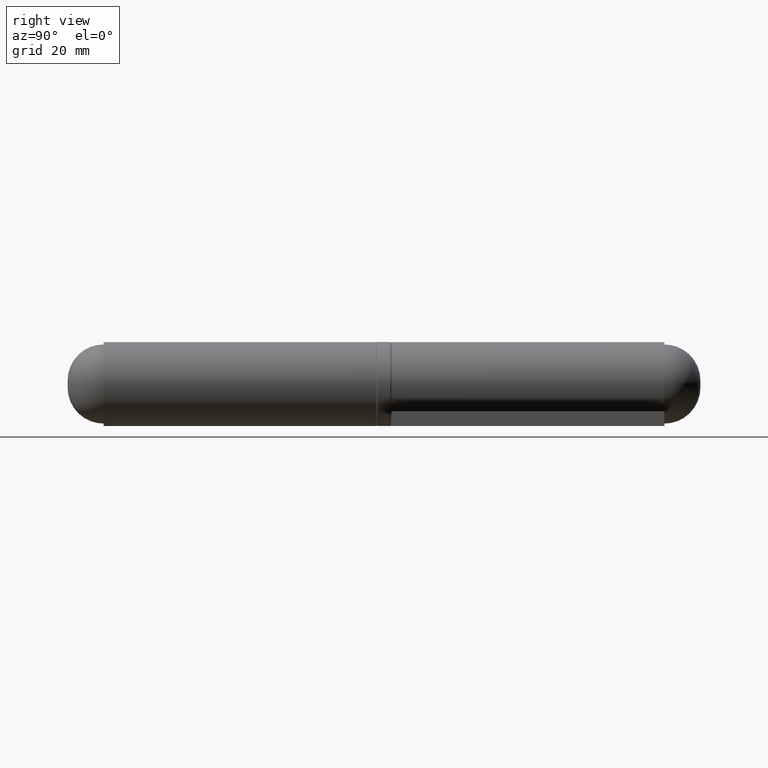
[diagram: clean part render]
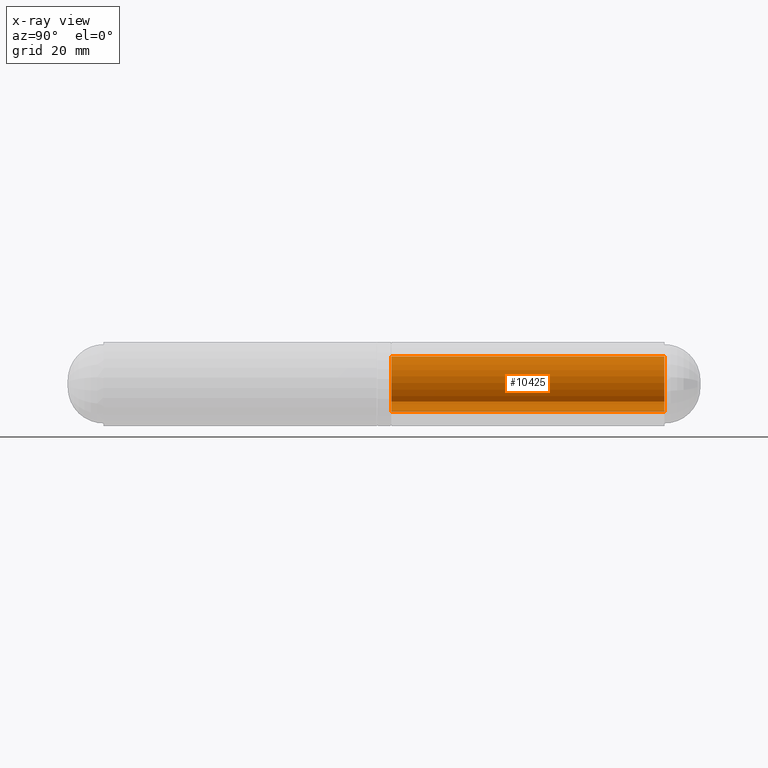
[diagram: x-ray — body ghosted, one internal face saturated and labeled with its STEP entity id]
A machine part, right view, then the same camera in x-ray: the body is ghosted and one INTERNAL B-rep face — a face not visible from any outside direction — is saturated and labeled: STEP entity #10425.
In plain terms, the highlighted cylindrical surface (edge-blend (fillet) strip) has radius 5.75 mm, axis along (-0, -1, -0).
Its self-contained STEP definition (entity closure, byte-faithful):
#364 = ORIENTED_EDGE ( 'NONE', *, *, #9784, .F. ) ;
#377 = CARTESIAN_POINT ( 'NONE',  ( 0.000000000000000000, 28.50000000000000000, -5.750000000000000888 ) ) ;
#409 = DIRECTION ( 'NONE',  ( 0.000000000000000000, 1.000000000000000000, -0.000000000000000000 ) ) ;
#480 = EDGE_CURVE ( 'NONE', #3544, #9344, #11389, .T. ) ;
#508 = VERTEX_POINT ( 'NONE', #377 ) ;
#744 = DIRECTION ( 'NONE',  ( 0.000000000000000000, 0.000000000000000000, 1.000000000000000000 ) ) ;
#945 = AXIS2_PLACEMENT_3D ( 'NONE', #2882, #2926, #3822 ) ;
#1348 = EDGE_CURVE ( 'NONE', #508, #11129, #1392, .T. ) ;
#1392 = CIRCLE ( 'NONE', #5823, 5.750000000000000888 ) ;
#1993 = CARTESIAN_POINT ( 'NONE',  ( 4.390579897545960897, -28.50000000000000000, -3.712857142857143522 ) ) ;
#2882 = CARTESIAN_POINT ( 'NONE',  ( 0.000000000000000000, 28.50000000000000000, 0.000000000000000000 ) ) ;
#2919 = LINE ( 'NONE', #6779, #9682 ) ;
#2926 = DIRECTION ( 'NONE',  ( -0.000000000000000000, -1.000000000000000000, -0.000000000000000000 ) ) ;
#3470 = CARTESIAN_POINT ( 'NONE',  ( 0.000000000000000000, 28.50000000000000000, 0.000000000000000000 ) ) ;
#3544 = VERTEX_POINT ( 'NONE', #9602 ) ;
#3553 = EDGE_LOOP ( 'NONE', ( #3590, #364, #11710, #11655 ) ) ;
#3590 = ORIENTED_EDGE ( 'NONE', *, *, #480, .F. ) ;
#3620 = CYLINDRICAL_SURFACE ( 'NONE', #945, 5.750000000000000888 ) ;
#3822 = DIRECTION ( 'NONE',  ( 0.000000000000000000, 0.000000000000000000, -1.000000000000000000 ) ) ;
#4170 = EDGE_CURVE ( 'NONE', #11129, #9344, #5643, .T. ) ;
#4282 = DIRECTION ( 'NONE',  ( -0.000000000000000000, -1.000000000000000000, -0.000000000000000000 ) ) ;
#4929 = DIRECTION ( 'NONE',  ( -0.000000000000000000, -1.000000000000000000, -0.000000000000000000 ) ) ;
#5050 = FACE_OUTER_BOUND ( 'NONE', #3553, .T. ) ;
#5201 = CARTESIAN_POINT ( 'NONE',  ( 4.390579897545960897, 28.50000000000000000, -3.712857142857143522 ) ) ;
#5643 = LINE ( 'NONE', #5201, #6520 ) ;
#5823 = AXIS2_PLACEMENT_3D ( 'NONE', #3470, #8221, #744 ) ;
#5853 = DIRECTION ( 'NONE',  ( 0.000000000000000000, 0.000000000000000000, 1.000000000000000000 ) ) ;
#5887 = CARTESIAN_POINT ( 'NONE',  ( 0.000000000000000000, -28.50000000000000000, 0.000000000000000000 ) ) ;
#6520 = VECTOR ( 'NONE', #4282, 1000.000000000000000 ) ;
#6779 = CARTESIAN_POINT ( 'NONE',  ( 0.000000000000000000, 28.50000000000000000, -5.750000000000000888 ) ) ;
#8221 = DIRECTION ( 'NONE',  ( 0.000000000000000000, 1.000000000000000000, -0.000000000000000000 ) ) ;
#8918 = CARTESIAN_POINT ( 'NONE',  ( 4.390579897545960897, 28.50000000000000000, -3.712857142857143522 ) ) ;
#9344 = VERTEX_POINT ( 'NONE', #1993 ) ;
#9602 = CARTESIAN_POINT ( 'NONE',  ( 0.000000000000000000, -28.50000000000000000, -5.750000000000000888 ) ) ;
#9682 = VECTOR ( 'NONE', #4929, 1000.000000000000000 ) ;
#9784 = EDGE_CURVE ( 'NONE', #508, #3544, #2919, .T. ) ;
#10411 = AXIS2_PLACEMENT_3D ( 'NONE', #5887, #409, #5853 ) ;
#10425 = ADVANCED_FACE ( 'NONE', ( #5050 ), #3620, .F. ) ;
#11129 = VERTEX_POINT ( 'NONE', #8918 ) ;
#11389 = CIRCLE ( 'NONE', #10411, 5.750000000000000888 ) ;
#11655 = ORIENTED_EDGE ( 'NONE', *, *, #4170, .T. ) ;
#11710 = ORIENTED_EDGE ( 'NONE', *, *, #1348, .T. ) ;